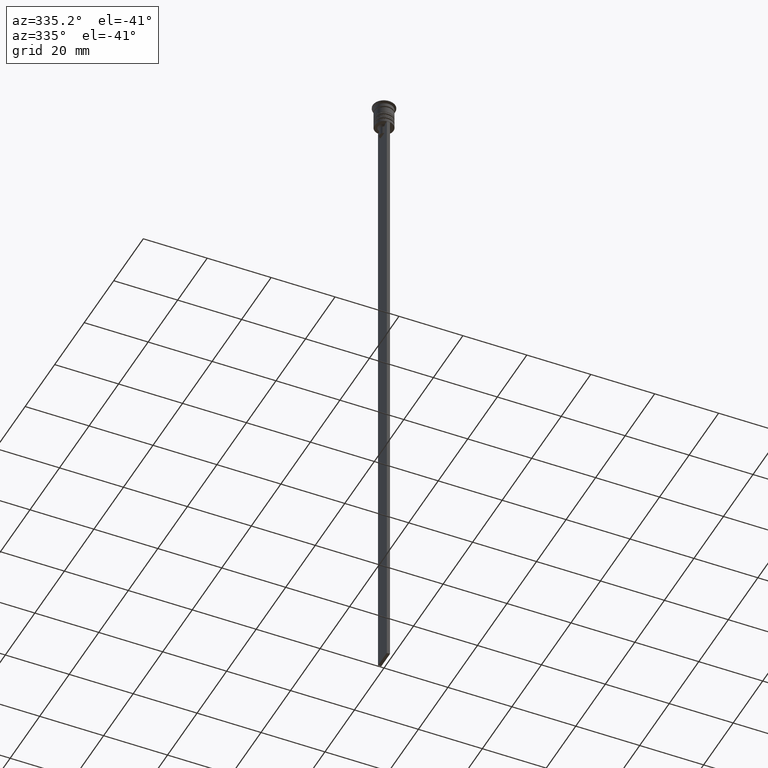
[diagram: clean part render]
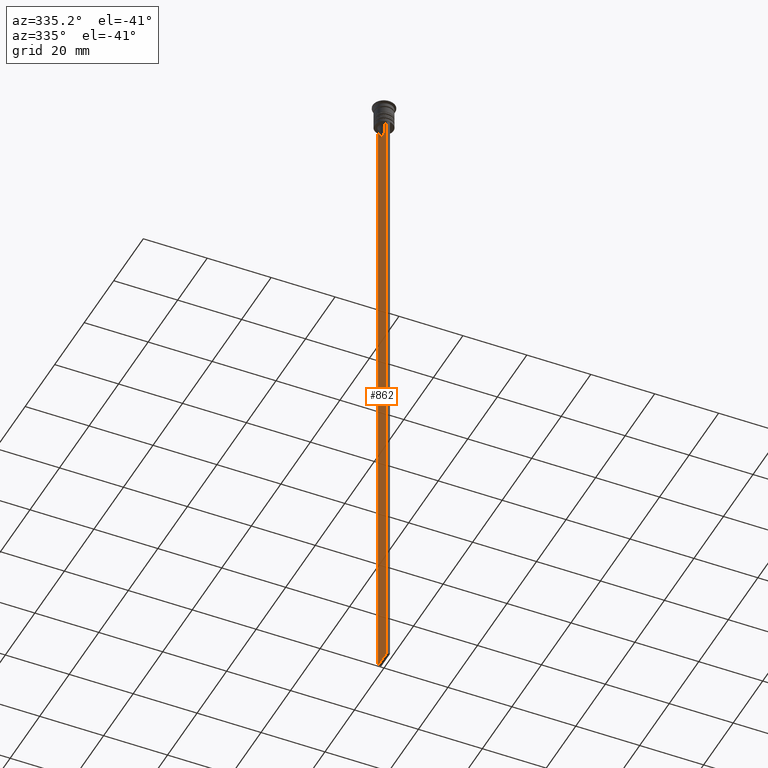
[diagram: same view with one face highlighted and labeled with its STEP entity id]
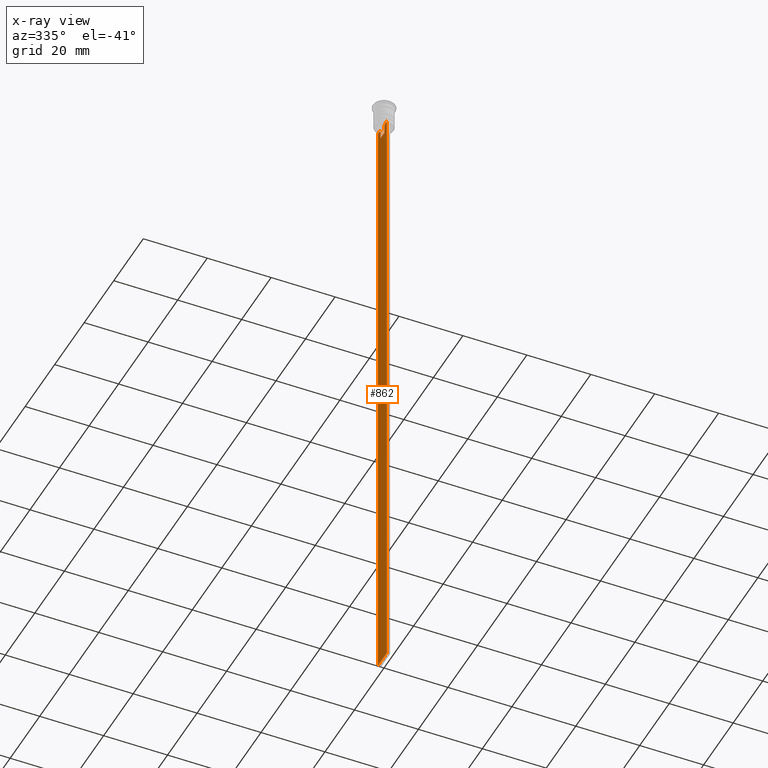
[diagram: x-ray of the same camera — body ghosted, the highlighted face saturated]
A machine part, auxiliary view. The second image highlights one B-rep face of the part: STEP entity #862.
The next image is the same camera in x-ray: the body ghosted, the highlighted face saturated — about 0% of this face is hidden behind the body in this view.
In plain terms, the highlighted planar face has unit normal (-1, 0, 0).
Its self-contained STEP definition (entity closure, byte-faithful):
#57 = B_SPLINE_CURVE_WITH_KNOTS ( 'NONE', 3,
 ( #796, #585, #393, #2163 ),
 .UNSPECIFIED., .F., .F.,
 ( 4, 4 ),
 ( 0.007225659348748070081, 0.007950554640278040958 ),
 .UNSPECIFIED. ) ;
#72 = VECTOR ( 'NONE', #958, 1000.000000000000000 ) ;
#82 = CARTESIAN_POINT ( 'NONE',  ( -0.5000000000000001110, 1.307669683062199217, 0.000000000000000000 ) ) ;
#89 = CARTESIAN_POINT ( 'NONE',  ( -0.5000000000000001110, -1.307669683062199217, -8.000000000000000000 ) ) ;
#93 = EDGE_CURVE ( 'NONE', #1091, #695, #1316, .T. ) ;
#154 = EDGE_CURVE ( 'NONE', #1544, #1748, #1734, .T. ) ;
#170 = CARTESIAN_POINT ( 'NONE',  ( -0.5000000000000001110, 1.399999999999997691, -10.49999999999999822 ) ) ;
#180 = EDGE_CURVE ( 'NONE', #1572, #1091, #2005, .T. ) ;
#196 = CARTESIAN_POINT ( 'NONE',  ( -0.5000000000000001110, -3.000000000000000000, -207.5000000000000284 ) ) ;
#321 = CARTESIAN_POINT ( 'NONE',  ( -0.5000000000000001110, -3.000000000000000000, -7.500000000000000000 ) ) ;
#353 = VECTOR ( 'NONE', #534, 1000.000000000000000 ) ;
#371 = ORIENTED_EDGE ( 'NONE', *, *, #180, .F. ) ;
#381 = VERTEX_POINT ( 'NONE', #549 ) ;
#393 = CARTESIAN_POINT ( 'NONE',  ( -0.5000000000000001110, -1.659011726860414093, -7.667884880598472286 ) ) ;
#396 = ORIENTED_EDGE ( 'NONE', *, *, #93, .F. ) ;
#419 = ORIENTED_EDGE ( 'NONE', *, *, #1090, .T. ) ;
#431 = FACE_OUTER_BOUND ( 'NONE', #1235, .T. ) ;
#443 = DIRECTION ( 'NONE',  ( 0.000000000000000000, -1.000000000000000000, 0.000000000000000000 ) ) ;
#451 = VECTOR ( 'NONE', #1921, 1000.000000000000000 ) ;
#475 = EDGE_CURVE ( 'NONE', #515, #1830, #1885, .T. ) ;
#515 = VERTEX_POINT ( 'NONE', #1181 ) ;
#534 = DIRECTION ( 'NONE',  ( 0.000000000000000000, 0.000000000000000000, -1.000000000000000000 ) ) ;
#542 = LINE ( 'NONE', #170, #1118 ) ;
#549 = CARTESIAN_POINT ( 'NONE',  ( -0.5000000000000001110, 2.856571371417139904, -7.500000000000000000 ) ) ;
#552 = VERTEX_POINT ( 'NONE', #89 ) ;
#585 = CARTESIAN_POINT ( 'NONE',  ( -0.5000000000000001110, -1.484307477388859153, -7.835011508197190722 ) ) ;
#597 = CARTESIAN_POINT ( 'NONE',  ( -0.5000000000000001110, -3.000000000000000000, -1.417237469701779329 ) ) ;
#695 = VERTEX_POINT ( 'NONE', #1599 ) ;
#713 = CARTESIAN_POINT ( 'NONE',  ( -0.5000000000000001110, 3.000000000000000000, -7.500000000000000000 ) ) ;
#725 = ORIENTED_EDGE ( 'NONE', *, *, #1152, .F. ) ;
#735 = ORIENTED_EDGE ( 'NONE', *, *, #1675, .F. ) ;
#781 = CARTESIAN_POINT ( 'NONE',  ( -0.5000000000000001110, -3.000000000000000000, -7.500000000000000000 ) ) ;
#796 = CARTESIAN_POINT ( 'NONE',  ( -0.5000000000000001110, -1.307669683062199217, -8.000000000000000000 ) ) ;
#801 = EDGE_CURVE ( 'NONE', #1103, #552, #1442, .T. ) ;
#804 = DIRECTION ( 'NONE',  ( 0.000000000000000000, -1.000000000000000000, 0.000000000000000000 ) ) ;
#850 = VECTOR ( 'NONE', #804, 1000.000000000000000 ) ;
#862 = ADVANCED_FACE ( 'NONE', ( #431 ), #1754, .T. ) ;
#863 = EDGE_CURVE ( 'NONE', #1083, #381, #1679, .T. ) ;
#875 = ORIENTED_EDGE ( 'NONE', *, *, #1663, .F. ) ;
#886 = B_SPLINE_CURVE_WITH_KNOTS ( 'NONE', 3,
 ( #1359, #1513, #1014, #2037 ),
 .UNSPECIFIED., .F., .F.,
 ( 4, 4 ),
 ( 0.003278537493109840491, 0.004003794023484932504 ),
 .UNSPECIFIED. ) ;
#958 = DIRECTION ( 'NONE',  ( 0.000000000000000000, 1.000000000000000000, 0.000000000000000000 ) ) ;
#1005 = LINE ( 'NONE', #1175, #2008 ) ;
#1014 = CARTESIAN_POINT ( 'NONE',  ( -0.5000000000000001110, 1.484355510416485391, -7.834966642958598015 ) ) ;
#1083 = VERTEX_POINT ( 'NONE', #713 ) ;
#1090 = EDGE_CURVE ( 'NONE', #1083, #695, #1428, .T. ) ;
#1091 = VERTEX_POINT ( 'NONE', #196 ) ;
#1094 = VECTOR ( 'NONE', #1526, 1000.000000000000000 ) ;
#1103 = VERTEX_POINT ( 'NONE', #1588 ) ;
#1118 = VECTOR ( 'NONE', #1781, 1000.000000000000000 ) ;
#1152 = EDGE_CURVE ( 'NONE', #552, #1544, #57, .T. ) ;
#1175 = CARTESIAN_POINT ( 'NONE',  ( -0.5000000000000001110, -3.000000000000000000, -7.500000000000000000 ) ) ;
#1181 = CARTESIAN_POINT ( 'NONE',  ( -0.5000000000000001110, 1.307669683062199217, -8.000000000000000000 ) ) ;
#1235 = EDGE_LOOP ( 'NONE', ( #1808, #735, #1545, #419, #396, #371, #875, #1876, #725, #1642, #1502, #2192 ) ) ;
#1253 = AXIS2_PLACEMENT_3D ( 'NONE', #1379, #1743, #1547 ) ;
#1316 = LINE ( 'NONE', #2022, #72 ) ;
#1349 = LINE ( 'NONE', #2236, #850 ) ;
#1359 = CARTESIAN_POINT ( 'NONE',  ( -0.5000000000000001110, 1.833030277982335532, -7.500000000000000000 ) ) ;
#1379 = CARTESIAN_POINT ( 'NONE',  ( -0.5000000000000001110, -3.000000000000000000, -1.417237469701779329 ) ) ;
#1387 = EDGE_CURVE ( 'NONE', #1830, #1103, #542, .T. ) ;
#1428 = LINE ( 'NONE', #2152, #353 ) ;
#1431 = CARTESIAN_POINT ( 'NONE',  ( -0.5000000000000001110, 1.833030277982335532, -7.500000000000000000 ) ) ;
#1442 = LINE ( 'NONE', #2147, #1470 ) ;
#1461 = DIRECTION ( 'NONE',  ( -0.000000000000000000, -0.000000000000000000, 1.000000000000000000 ) ) ;
#1470 = VECTOR ( 'NONE', #1461, 1000.000000000000000 ) ;
#1502 = ORIENTED_EDGE ( 'NONE', *, *, #1387, .F. ) ;
#1513 = CARTESIAN_POINT ( 'NONE',  ( -0.5000000000000001110, 1.659046061654642523, -7.667851756010361619 ) ) ;
#1526 = DIRECTION ( 'NONE',  ( 0.000000000000000000, 0.000000000000000000, -1.000000000000000000 ) ) ;
#1538 = VECTOR ( 'NONE', #2271, 1000.000000000000000 ) ;
#1541 = CARTESIAN_POINT ( 'NONE',  ( -0.5000000000000001110, -2.856571371417139904, -7.500000000000000000 ) ) ;
#1544 = VERTEX_POINT ( 'NONE', #2196 ) ;
#1545 = ORIENTED_EDGE ( 'NONE', *, *, #863, .F. ) ;
#1547 = DIRECTION ( 'NONE',  ( 0.000000000000000000, 0.000000000000000000, 1.000000000000000000 ) ) ;
#1572 = VERTEX_POINT ( 'NONE', #781 ) ;
#1588 = CARTESIAN_POINT ( 'NONE',  ( -0.5000000000000001110, -1.307669683062199217, -10.49999999999999822 ) ) ;
#1599 = CARTESIAN_POINT ( 'NONE',  ( -0.5000000000000001110, 3.000000000000000000, -207.5000000000000284 ) ) ;
#1627 = DIRECTION ( 'NONE',  ( 0.000000000000000000, 0.000000000000000000, -1.000000000000000000 ) ) ;
#1642 = ORIENTED_EDGE ( 'NONE', *, *, #801, .F. ) ;
#1663 = EDGE_CURVE ( 'NONE', #1748, #1572, #1005, .T. ) ;
#1675 = EDGE_CURVE ( 'NONE', #381, #1844, #1349, .T. ) ;
#1679 = LINE ( 'NONE', #321, #1538 ) ;
#1685 = VECTOR ( 'NONE', #1627, 1000.000000000000000 ) ;
#1734 = LINE ( 'NONE', #2248, #451 ) ;
#1743 = DIRECTION ( 'NONE',  ( -1.000000000000000000, 0.000000000000000000, 0.000000000000000000 ) ) ;
#1748 = VERTEX_POINT ( 'NONE', #1541 ) ;
#1754 = PLANE ( 'NONE',  #1253 ) ;
#1781 = DIRECTION ( 'NONE',  ( 0.000000000000000000, -1.000000000000000000, 0.000000000000000000 ) ) ;
#1808 = ORIENTED_EDGE ( 'NONE', *, *, #2116, .F. ) ;
#1830 = VERTEX_POINT ( 'NONE', #1950 ) ;
#1844 = VERTEX_POINT ( 'NONE', #1431 ) ;
#1876 = ORIENTED_EDGE ( 'NONE', *, *, #154, .F. ) ;
#1885 = LINE ( 'NONE', #82, #1094 ) ;
#1921 = DIRECTION ( 'NONE',  ( 0.000000000000000000, -1.000000000000000000, 0.000000000000000000 ) ) ;
#1950 = CARTESIAN_POINT ( 'NONE',  ( -0.5000000000000001110, 1.307669683062199217, -10.49999999999999822 ) ) ;
#2005 = LINE ( 'NONE', #597, #1685 ) ;
#2008 = VECTOR ( 'NONE', #443, 1000.000000000000000 ) ;
#2022 = CARTESIAN_POINT ( 'NONE',  ( -0.5000000000000001110, -3.000000000000000000, -207.5000000000000284 ) ) ;
#2037 = CARTESIAN_POINT ( 'NONE',  ( -0.5000000000000001110, 1.307669683062199217, -8.000000000000000000 ) ) ;
#2116 = EDGE_CURVE ( 'NONE', #1844, #515, #886, .T. ) ;
#2147 = CARTESIAN_POINT ( 'NONE',  ( -0.5000000000000001110, -1.307669683062199217, 0.000000000000000000 ) ) ;
#2152 = CARTESIAN_POINT ( 'NONE',  ( -0.5000000000000001110, 3.000000000000000000, -1.417237469701779329 ) ) ;
#2163 = CARTESIAN_POINT ( 'NONE',  ( -0.5000000000000001110, -1.833030277982335532, -7.500000000000000000 ) ) ;
#2192 = ORIENTED_EDGE ( 'NONE', *, *, #475, .F. ) ;
#2196 = CARTESIAN_POINT ( 'NONE',  ( -0.5000000000000001110, -1.833030277982335532, -7.500000000000000000 ) ) ;
#2236 = CARTESIAN_POINT ( 'NONE',  ( -0.5000000000000001110, -3.000000000000000000, -7.500000000000000000 ) ) ;
#2248 = CARTESIAN_POINT ( 'NONE',  ( -0.5000000000000001110, -3.000000000000000000, -7.500000000000000000 ) ) ;
#2271 = DIRECTION ( 'NONE',  ( 0.000000000000000000, -1.000000000000000000, 0.000000000000000000 ) ) ;